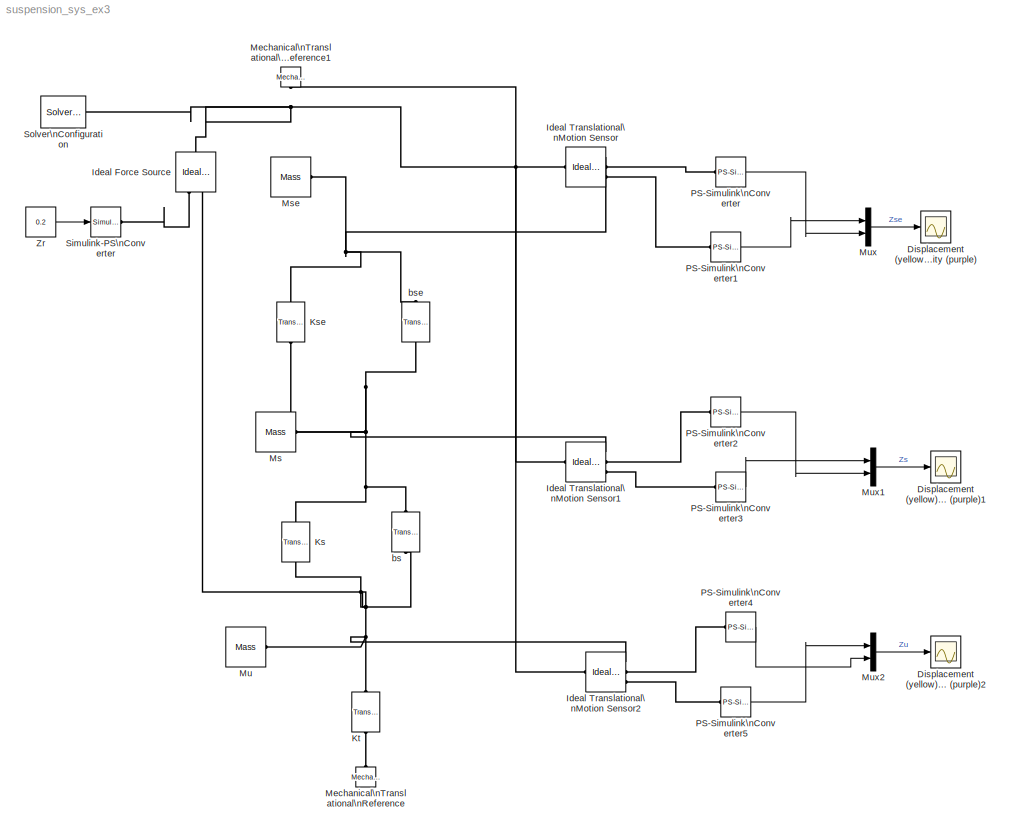
MODEL suspension_sys_ex3
KIND model
BLOCK [Reference]  Ks  REF=fl_lib/Mechanical/Translational\nElements/Translational Spring
  ClassName = spring_transl
  DialogController = NetworkEngine.DynNeDlgSource
  FunctionWithSeparateData = off
  LocalVarDescs = |Spring force (N)|Spring deformation (m)
  LocalVarLogging = [0 0]
  LocalVarNames = |force|deformation
  Ports = [0, 0, 0, 0, 0, 1, 1]
  RTWMemSecDataConstants = Inherit from model
  RTWMemSecDataInternal = Inherit from model
  RTWMemSecDataParameters = Inherit from model
  RTWMemSecFuncExecute = Inherit from model
  RTWMemSecFuncInitTerm = Inherit from model
  SchemaVersion = 1
  ShowPortLabels = FromPortIcon
  SourceBlock = fl_lib/Mechanical/Translational\nElements/Translational Spring
  SourceType = Translational Spring
  SystemSampleTime = -1
  deformation_Log = off
  force_Log = off
  init_def = 0
  init_def_unit = m
  spr_rate = 28000
  spr_rate_unit = N/m
BLOCK [Reference]  Kse  REF=fl_lib/Mechanical/Translational\nElements/Translational Spring
  ClassName = spring_transl
  DialogController = NetworkEngine.DynNeDlgSource
  FunctionWithSeparateData = off
  LocalVarDescs = |Spring force (N)|Spring deformation (m)
  LocalVarLogging = [0 0]
  LocalVarNames = |force|deformation
  Ports = [0, 0, 0, 0, 0, 1, 1]
  RTWMemSecDataConstants = Inherit from model
  RTWMemSecDataInternal = Inherit from model
  RTWMemSecDataParameters = Inherit from model
  RTWMemSecFuncExecute = Inherit from model
  RTWMemSecFuncInitTerm = Inherit from model
  SchemaVersion = 1
  ShowPortLabels = FromPortIcon
  SourceBlock = fl_lib/Mechanical/Translational\nElements/Translational Spring
  SourceType = Translational Spring
  SystemSampleTime = -1
  deformation_Log = off
  force_Log = off
  init_def = 0
  init_def_unit = m
  spr_rate = 8000
  spr_rate_unit = N/m
BLOCK [Reference]  Kt  REF=fl_lib/Mechanical/Translational\nElements/Translational Spring
  ClassName = spring_transl
  DialogController = NetworkEngine.DynNeDlgSource
  FunctionWithSeparateData = off
  LocalVarDescs = |Spring force (N)|Spring deformation (m)
  LocalVarLogging = [0 0]
  LocalVarNames = |force|deformation
  Ports = [0, 0, 0, 0, 0, 1, 1]
  RTWMemSecDataConstants = Inherit from model
  RTWMemSecDataInternal = Inherit from model
  RTWMemSecDataParameters = Inherit from model
  RTWMemSecFuncExecute = Inherit from model
  RTWMemSecFuncInitTerm = Inherit from model
  SchemaVersion = 1
  ShowPortLabels = FromPortIcon
  SourceBlock = fl_lib/Mechanical/Translational\nElements/Translational Spring
  SourceType = Translational Spring
  SystemSampleTime = -1
  deformation_Log = off
  force_Log = off
  init_def = 0
  init_def_unit = m
  spr_rate = 125000
  spr_rate_unit = N/m
BLOCK [Scope] Displacement (yellow)\nVelocity (purple)
  DataFormat = StructureWithTime
  Floating = off
  NumInputPorts = 1
  Ports = [1]
  SampleTime = 0
  SaveName = ScopeData6
  TimeRange = 10
  YMax = 1.2e-005
  YMin = -6e-006
BLOCK [Scope] Displacement (yellow)\nVelocity (purple)1
  DataFormat = StructureWithTime
  Floating = off
  NumInputPorts = 1
  Ports = [1]
  SampleTime = 0
  TimeRange = 10
  YMax = 1.4e-005
  YMin = -6e-006
BLOCK [Scope] Displacement (yellow)\nVelocity (purple)2
  DataFormat = StructureWithTime
  Floating = off
  NumInputPorts = 1
  Ports = [1]
  SampleTime = 0
  SaveName = ScopeData1
  TimeRange = 10
  YMax = 6e-005
  YMin = -9.999999999999999e-006
BLOCK [Reference] Ideal Force Source  REF=fl_lib/Mechanical/Mechanical Sensors\nand Sources/Ideal Force Source
  ClassName = source_force
  DialogController = NetworkEngine.DynNeDlgSource
  FunctionWithSeparateData = off
  LocalVarDescs = |Force (N)|Relative velocity (m/s)|Power generated by the source (W)
  LocalVarLogging = [0 0 0]
  LocalVarNames = |force|rel_velocity|power
  Ports = [0, 0, 0, 0, 0, 1, 2]
  RTWMemSecDataConstants = Inherit from model
  RTWMemSecDataInternal = Inherit from model
  RTWMemSecDataParameters = Inherit from model
  RTWMemSecFuncExecute = Inherit from model
  RTWMemSecFuncInitTerm = Inherit from model
  SchemaVersion = 1
  ShowPortLabels = FromPortIcon
  SourceBlock = fl_lib/Mechanical/Mechanical Sensors\nand Sources/Ideal Force Source
  SourceType = Ideal Force Source
  SystemSampleTime = -1
  force_Log = off
  power_Log = off
  rel_velocity_Log = off
BLOCK [Reference] Ideal Translational\nMotion Sensor  REF=fl_lib/Mechanical/Mechanical Sensors\nand Sources/Ideal Translational\nMotion Sensor
  ClassName = sensor_transl_motion
  DialogController = NetworkEngine.DynNeDlgSource
  FunctionWithSeparateData = off
  LocalVarLogging = []
  Ports = [0, 0, 0, 0, 0, 1, 3]
  RTWMemSecDataConstants = Inherit from model
  RTWMemSecDataInternal = Inherit from model
  RTWMemSecDataParameters = Inherit from model
  RTWMemSecFuncExecute = Inherit from model
  RTWMemSecFuncInitTerm = Inherit from model
  SchemaVersion = 1
  ShowPortLabels = FromPortIcon
  SourceBlock = fl_lib/Mechanical/Mechanical Sensors\nand Sources/Ideal Translational\nMotion Sensor
  SourceType = Ideal Translational\nMotion Sensor
  SystemSampleTime = -1
  offset = 0
  offset_unit = m
BLOCK [Reference] Ideal Translational\nMotion Sensor1  REF=fl_lib/Mechanical/Mechanical Sensors\nand Sources/Ideal Translational\nMotion Sensor
  ClassName = sensor_transl_motion
  DialogController = NetworkEngine.DynNeDlgSource
  FunctionWithSeparateData = off
  LocalVarLogging = []
  Ports = [0, 0, 0, 0, 0, 1, 3]
  RTWMemSecDataConstants = Inherit from model
  RTWMemSecDataInternal = Inherit from model
  RTWMemSecDataParameters = Inherit from model
  RTWMemSecFuncExecute = Inherit from model
  RTWMemSecFuncInitTerm = Inherit from model
  SchemaVersion = 1
  ShowPortLabels = FromPortIcon
  SourceBlock = fl_lib/Mechanical/Mechanical Sensors\nand Sources/Ideal Translational\nMotion Sensor
  SourceType = Ideal Translational\nMotion Sensor
  SystemSampleTime = -1
  offset = 0
  offset_unit = m
BLOCK [Reference] Ideal Translational\nMotion Sensor2  REF=fl_lib/Mechanical/Mechanical Sensors\nand Sources/Ideal Translational\nMotion Sensor
  ClassName = sensor_transl_motion
  DialogController = NetworkEngine.DynNeDlgSource
  FunctionWithSeparateData = off
  LocalVarLogging = []
  Ports = [0, 0, 0, 0, 0, 1, 3]
  RTWMemSecDataConstants = Inherit from model
  RTWMemSecDataInternal = Inherit from model
  RTWMemSecDataParameters = Inherit from model
  RTWMemSecFuncExecute = Inherit from model
  RTWMemSecFuncInitTerm = Inherit from model
  SchemaVersion = 1
  ShowPortLabels = FromPortIcon
  SourceBlock = fl_lib/Mechanical/Mechanical Sensors\nand Sources/Ideal Translational\nMotion Sensor
  SourceType = Ideal Translational\nMotion Sensor
  SystemSampleTime = -1
  offset = 0
  offset_unit = m
BLOCK [Reference] Mechanical\nTranslational\nReference  REF=fl_lib/Mechanical/Translational\nElements/Mechanical\nTranslational\nReference
  ClassName = reference_transl
  DialogController = NetworkEngine.DynNeDlgSource
  FunctionWithSeparateData = off
  LocalVarLogging = []
  Ports = [0, 0, 0, 0, 0, 1]
  RTWMemSecDataConstants = Inherit from model
  RTWMemSecDataInternal = Inherit from model
  RTWMemSecDataParameters = Inherit from model
  RTWMemSecFuncExecute = Inherit from model
  RTWMemSecFuncInitTerm = Inherit from model
  SchemaVersion = 1
  ShowPortLabels = FromPortIcon
  SourceBlock = fl_lib/Mechanical/Translational\nElements/Mechanical\nTranslational\nReference
  SourceType = Mechanical\nTranslational\nReference
  SystemSampleTime = -1
BLOCK [Reference] Mechanical\nTranslational\nReference1  REF=fl_lib/Mechanical/Translational\nElements/Mechanical\nTranslational\nReference
  ClassName = reference_transl
  DialogController = NetworkEngine.DynNeDlgSource
  FunctionWithSeparateData = off
  LocalVarLogging = []
  Ports = [0, 0, 0, 0, 0, 1]
  RTWMemSecDataConstants = Inherit from model
  RTWMemSecDataInternal = Inherit from model
  RTWMemSecDataParameters = Inherit from model
  RTWMemSecFuncExecute = Inherit from model
  RTWMemSecFuncInitTerm = Inherit from model
  SchemaVersion = 1
  ShowPortLabels = FromPortIcon
  SourceBlock = fl_lib/Mechanical/Translational\nElements/Mechanical\nTranslational\nReference
  SourceType = Mechanical\nTranslational\nReference
  SystemSampleTime = -1
BLOCK [Reference] Ms  REF=fl_lib/Mechanical/Translational\nElements/Mass
  ClassName = mass
  DialogController = NetworkEngine.DynNeDlgSource
  FunctionWithSeparateData = off
  LocalVarDescs = |Inertia force (N)|Mass absolute velocity (m/s)
  LocalVarLogging = [0 0]
  LocalVarNames = |force|velocity
  Ports = [0, 0, 0, 0, 0, 1]
  RTWMemSecDataConstants = Inherit from model
  RTWMemSecDataInternal = Inherit from model
  RTWMemSecDataParameters = Inherit from model
  RTWMemSecFuncExecute = Inherit from model
  RTWMemSecFuncInitTerm = Inherit from model
  SchemaVersion = 1
  ShowPortLabels = FromPortIcon
  SourceBlock = fl_lib/Mechanical/Translational\nElements/Mass
  SourceType = Mass
  SystemSampleTime = -1
  force_Log = off
  initial_velocity = 0
  initial_velocity_unit = m/s
  mass = 250
  mass_unit = kg
  velocity_Log = off
BLOCK [Reference] Mse  REF=fl_lib/Mechanical/Translational\nElements/Mass
  ClassName = mass
  DialogController = NetworkEngine.DynNeDlgSource
  FunctionWithSeparateData = off
  LocalVarDescs = |Inertia force (N)|Mass absolute velocity (m/s)
  LocalVarLogging = [0 0]
  LocalVarNames = |force|velocity
  Ports = [0, 0, 0, 0, 0, 1]
  RTWMemSecDataConstants = Inherit from model
  RTWMemSecDataInternal = Inherit from model
  RTWMemSecDataParameters = Inherit from model
  RTWMemSecFuncExecute = Inherit from model
  RTWMemSecFuncInitTerm = Inherit from model
  SchemaVersion = 1
  ShowPortLabels = FromPortIcon
  SourceBlock = fl_lib/Mechanical/Translational\nElements/Mass
  SourceType = Mass
  SystemSampleTime = -1
  force_Log = off
  initial_velocity = 0
  initial_velocity_unit = m/s
  mass = 90
  mass_unit = kg
  velocity_Log = off
BLOCK [Reference] Mu  REF=fl_lib/Mechanical/Translational\nElements/Mass
  ClassName = mass
  DialogController = NetworkEngine.DynNeDlgSource
  FunctionWithSeparateData = off
  LocalVarDescs = |Inertia force (N)|Mass absolute velocity (m/s)
  LocalVarLogging = [0 0]
  LocalVarNames = |force|velocity
  Ports = [0, 0, 0, 0, 0, 1]
  RTWMemSecDataConstants = Inherit from model
  RTWMemSecDataInternal = Inherit from model
  RTWMemSecDataParameters = Inherit from model
  RTWMemSecFuncExecute = Inherit from model
  RTWMemSecFuncInitTerm = Inherit from model
  SchemaVersion = 1
  ShowPortLabels = FromPortIcon
  SourceBlock = fl_lib/Mechanical/Translational\nElements/Mass
  SourceType = Mass
  SystemSampleTime = -1
  force_Log = off
  initial_velocity = 0
  initial_velocity_unit = m/s
  mass = 40
  mass_unit = kg
  velocity_Log = off
BLOCK [Mux] Mux
  DisplayOption = bar
  Inputs = 2
  Ports = [2, 1]
BLOCK [Mux] Mux1
  DisplayOption = bar
  Inputs = 2
  Ports = [2, 1]
BLOCK [Mux] Mux2
  DisplayOption = bar
  Inputs = 2
  Ports = [2, 1]
BLOCK [Reference] PS-Simulink\nConverter  REF=nesl_utility/PS-Simulink\nConverter
  DialogController = NetworkEngine.DynNeUtilDlgSource
  FunctionWithSeparateData = off
  LeftPortType = input
  PhysicalDomain = network_engine_domain
  Ports = [0, 1, 0, 0, 0, 1]
  RTWMemSecDataConstants = Inherit from model
  RTWMemSecDataInternal = Inherit from model
  RTWMemSecDataParameters = Inherit from model
  RTWMemSecFuncExecute = Inherit from model
  RTWMemSecFuncInitTerm = Inherit from model
  RightPortType = output
  ShowPortLabels = FromPortIcon
  SourceBlock = nesl_utility/PS-Simulink\nConverter
  SourceType = PS-Simulink\nConverter
  SubClassName = ps_output
  SystemSampleTime = -1
  Unit = 1
BLOCK [Reference] PS-Simulink\nConverter1  REF=nesl_utility/PS-Simulink\nConverter
  DialogController = NetworkEngine.DynNeUtilDlgSource
  FunctionWithSeparateData = off
  LeftPortType = input
  PhysicalDomain = network_engine_domain
  Ports = [0, 1, 0, 0, 0, 1]
  RTWMemSecDataConstants = Inherit from model
  RTWMemSecDataInternal = Inherit from model
  RTWMemSecDataParameters = Inherit from model
  RTWMemSecFuncExecute = Inherit from model
  RTWMemSecFuncInitTerm = Inherit from model
  RightPortType = output
  ShowPortLabels = FromPortIcon
  SourceBlock = nesl_utility/PS-Simulink\nConverter
  SourceType = PS-Simulink\nConverter
  SubClassName = ps_output
  SystemSampleTime = -1
  Unit = 1
BLOCK [Reference] PS-Simulink\nConverter2  REF=nesl_utility/PS-Simulink\nConverter
  DialogController = NetworkEngine.DynNeUtilDlgSource
  FunctionWithSeparateData = off
  LeftPortType = input
  PhysicalDomain = network_engine_domain
  Ports = [0, 1, 0, 0, 0, 1]
  RTWMemSecDataConstants = Inherit from model
  RTWMemSecDataInternal = Inherit from model
  RTWMemSecDataParameters = Inherit from model
  RTWMemSecFuncExecute = Inherit from model
  RTWMemSecFuncInitTerm = Inherit from model
  RightPortType = output
  ShowPortLabels = FromPortIcon
  SourceBlock = nesl_utility/PS-Simulink\nConverter
  SourceType = PS-Simulink\nConverter
  SubClassName = ps_output
  SystemSampleTime = -1
  Unit = 1
BLOCK [Reference] PS-Simulink\nConverter3  REF=nesl_utility/PS-Simulink\nConverter
  DialogController = NetworkEngine.DynNeUtilDlgSource
  FunctionWithSeparateData = off
  LeftPortType = input
  PhysicalDomain = network_engine_domain
  Ports = [0, 1, 0, 0, 0, 1]
  RTWMemSecDataConstants = Inherit from model
  RTWMemSecDataInternal = Inherit from model
  RTWMemSecDataParameters = Inherit from model
  RTWMemSecFuncExecute = Inherit from model
  RTWMemSecFuncInitTerm = Inherit from model
  RightPortType = output
  ShowPortLabels = FromPortIcon
  SourceBlock = nesl_utility/PS-Simulink\nConverter
  SourceType = PS-Simulink\nConverter
  SubClassName = ps_output
  SystemSampleTime = -1
  Unit = 1
BLOCK [Reference] PS-Simulink\nConverter4  REF=nesl_utility/PS-Simulink\nConverter
  DialogController = NetworkEngine.DynNeUtilDlgSource
  FunctionWithSeparateData = off
  LeftPortType = input
  PhysicalDomain = network_engine_domain
  Ports = [0, 1, 0, 0, 0, 1]
  RTWMemSecDataConstants = Inherit from model
  RTWMemSecDataInternal = Inherit from model
  RTWMemSecDataParameters = Inherit from model
  RTWMemSecFuncExecute = Inherit from model
  RTWMemSecFuncInitTerm = Inherit from model
  RightPortType = output
  ShowPortLabels = FromPortIcon
  SourceBlock = nesl_utility/PS-Simulink\nConverter
  SourceType = PS-Simulink\nConverter
  SubClassName = ps_output
  SystemSampleTime = -1
  Unit = 1
BLOCK [Reference] PS-Simulink\nConverter5  REF=nesl_utility/PS-Simulink\nConverter
  DialogController = NetworkEngine.DynNeUtilDlgSource
  FunctionWithSeparateData = off
  LeftPortType = input
  PhysicalDomain = network_engine_domain
  Ports = [0, 1, 0, 0, 0, 1]
  RTWMemSecDataConstants = Inherit from model
  RTWMemSecDataInternal = Inherit from model
  RTWMemSecDataParameters = Inherit from model
  RTWMemSecFuncExecute = Inherit from model
  RTWMemSecFuncInitTerm = Inherit from model
  RightPortType = output
  ShowPortLabels = FromPortIcon
  SourceBlock = nesl_utility/PS-Simulink\nConverter
  SourceType = PS-Simulink\nConverter
  SubClassName = ps_output
  SystemSampleTime = -1
  Unit = 1
BLOCK [Reference] Simulink-PS\nConverter  REF=nesl_utility/Simulink-PS\nConverter
  DialogController = NetworkEngine.DynNeUtilDlgSource
  FunctionWithSeparateData = off
  LeftPortType = input
  PhysicalDomain = network_engine_domain
  Ports = [1, 0, 0, 0, 0, 0, 1]
  RTWMemSecDataConstants = Inherit from model
  RTWMemSecDataInternal = Inherit from model
  RTWMemSecDataParameters = Inherit from model
  RTWMemSecFuncExecute = Inherit from model
  RTWMemSecFuncInitTerm = Inherit from model
  RightPortType = output
  ShowPortLabels = FromPortIcon
  SourceBlock = nesl_utility/Simulink-PS\nConverter
  SourceType = Simulink-PS\nConverter
  SubClassName = ps_input
  SystemSampleTime = -1
  Unit = 1
BLOCK [Reference] Solver\nConfiguration  REF=nesl_utility/Solver\nConfiguration
  Accelerate = off
  DialogController = NetworkEngine.DynNeUtilDlgSource
  DoDC = off
  DoFixedCost = off
  FunctionWithSeparateData = off
  LeftPortType = input
  LinearAlgebra = Sparse
  MaxModeIter = 2
  MaxNonlinIter = 12
  PhysicalDomain = network_engine_domain
  Ports = [0, 0, 0, 0, 0, 0, 1]
  RTWMemSecDataConstants = Inherit from model
  RTWMemSecDataInternal = Inherit from model
  RTWMemSecDataParameters = Inherit from model
  RTWMemSecFuncExecute = Inherit from model
  RTWMemSecFuncInitTerm = Inherit from model
  ResidualTolerance = 1e-9
  RightPortType = generic
  ShowPortLabels = FromPortIcon
  SourceBlock = nesl_utility/Solver\nConfiguration
  SourceType = Solver\nConfiguration
  SubClassName = solver
  SystemSampleTime = -1
BLOCK [Constant] Zr
  OutDataType = sfix(16)
  OutScaling = 2^0
  Value = 0.2
BLOCK [Reference] bs  REF=fl_lib/Mechanical/Translational\nElements/Translational Damper
  ClassName = damper_transl
  D = 2000
  D_unit = N/(m/s)
  DialogController = NetworkEngine.DynNeDlgSource
  FunctionWithSeparateData = off
  LocalVarDescs = |Damping force (N)|Damper relative velocity (m/s)|Power dissipated in the damper (W)
  LocalVarLogging = [0 0 0]
  LocalVarNames = |force|rel_velocity|power
  Ports = [0, 0, 0, 0, 0, 1, 1]
  RTWMemSecDataConstants = Inherit from model
  RTWMemSecDataInternal = Inherit from model
  RTWMemSecDataParameters = Inherit from model
  RTWMemSecFuncExecute = Inherit from model
  RTWMemSecFuncInitTerm = Inherit from model
  SchemaVersion = 1
  ShowPortLabels = FromPortIcon
  SourceBlock = fl_lib/Mechanical/Translational\nElements/Translational Damper
  SourceType = Translational Damper
  SystemSampleTime = -1
  force_Log = off
  power_Log = off
  rel_velocity_Log = off
BLOCK [Reference] bse  REF=fl_lib/Mechanical/Translational\nElements/Translational Damper
  ClassName = damper_transl
  D = 3000
  D_unit = N/(m/s)
  DialogController = NetworkEngine.DynNeDlgSource
  FunctionWithSeparateData = off
  LocalVarDescs = |Damping force (N)|Damper relative velocity (m/s)|Power dissipated in the damper (W)
  LocalVarLogging = [0 0 0]
  LocalVarNames = |force|rel_velocity|power
  Ports = [0, 0, 0, 0, 0, 1, 1]
  RTWMemSecDataConstants = Inherit from model
  RTWMemSecDataInternal = Inherit from model
  RTWMemSecDataParameters = Inherit from model
  RTWMemSecFuncExecute = Inherit from model
  RTWMemSecFuncInitTerm = Inherit from model
  SchemaVersion = 1
  ShowPortLabels = FromPortIcon
  SourceBlock = fl_lib/Mechanical/Translational\nElements/Translational Damper
  SourceType = Translational Damper
  SystemSampleTime = -1
  force_Log = off
  power_Log = off
  rel_velocity_Log = off
LINE Mux1:1 -> Displacement (yellow)\nVelocity (purple)1:1
LINE Mux2:1 -> Displacement (yellow)\nVelocity (purple)2:1
LINE Mux:1 -> Displacement (yellow)\nVelocity (purple):1
LINE PS-Simulink\nConverter1:1 -> Mux:1
LINE PS-Simulink\nConverter2:1 -> Mux1:2
LINE PS-Simulink\nConverter3:1 -> Mux1:1
LINE PS-Simulink\nConverter4:1 -> Mux2:2
LINE PS-Simulink\nConverter5:1 -> Mux2:1
LINE PS-Simulink\nConverter:1 -> Mux:2
LINE Zr:1 -> Simulink-PS\nConverter:1
PNET net1:  Ks:LConn1 --  Kse:RConn1 -- Ideal Translational\nMotion Sensor1:RConn1 -- Ms:LConn1 -- bs:LConn1 -- bse:RConn1
PNET net2:  Ks:RConn1 --  Kt:LConn1 -- Ideal Force Source:RConn2 -- Ideal Translational\nMotion Sensor2:RConn1 -- Mu:LConn1 -- bs:RConn1
PNET net3:  Kse:LConn1 -- Ideal Translational\nMotion Sensor:RConn1 -- Mse:LConn1 -- bse:LConn1
PLINE  Kt:RConn1 -- Mechanical\nTranslational\nReference:LConn1
PNET net4: Ideal Force Source:LConn1 -- Ideal Translational\nMotion Sensor1:LConn1 -- Ideal Translational\nMotion Sensor2:LConn1 -- Ideal Translational\nMotion Sensor:LConn1 -- Mechanical\nTranslational\nReference1:LConn1 -- Solver\nConfiguration:RConn1
PLINE Ideal Force Source:RConn1 -- Simulink-PS\nConverter:RConn1
PLINE Ideal Translational\nMotion Sensor1:RConn2 -- PS-Simulink\nConverter2:LConn1
PLINE Ideal Translational\nMotion Sensor1:RConn3 -- PS-Simulink\nConverter3:LConn1
PLINE Ideal Translational\nMotion Sensor2:RConn2 -- PS-Simulink\nConverter4:LConn1
PLINE Ideal Translational\nMotion Sensor2:RConn3 -- PS-Simulink\nConverter5:LConn1
PLINE Ideal Translational\nMotion Sensor:RConn2 -- PS-Simulink\nConverter:LConn1
PLINE Ideal Translational\nMotion Sensor:RConn3 -- PS-Simulink\nConverter1:LConn1
note: PNET lines group multi-terminal physical nets as a canonical sorted terminal list (undirected conserving connections); 2-terminal nets keep the pairwise PLINE form
